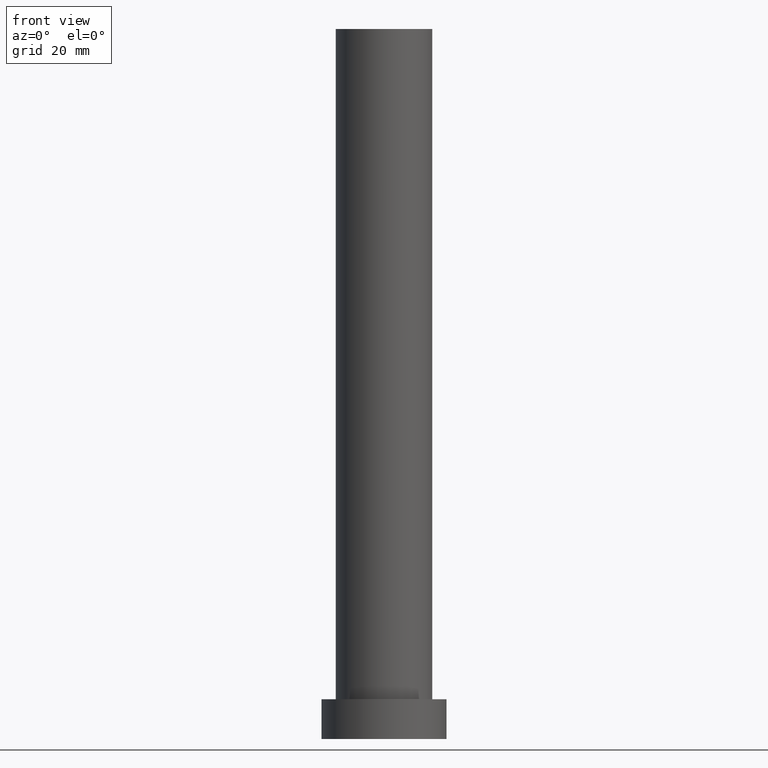
[diagram: clean part render]
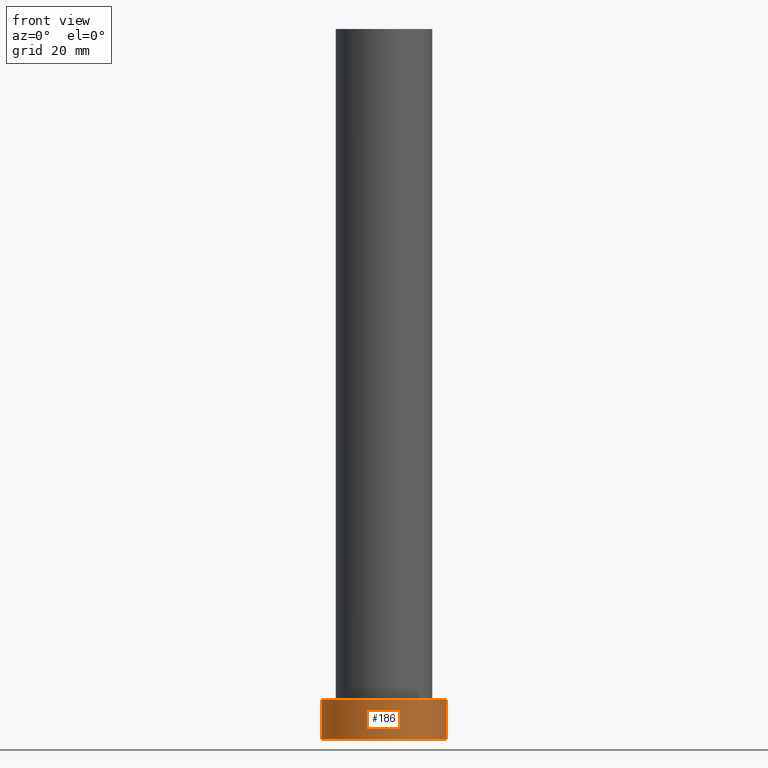
[diagram: same view with one face highlighted and labeled with its STEP entity id]
A machine part, front view. The second image highlights one B-rep face of the part: STEP entity #186.
In plain terms, the highlighted cylindrical surface (partial cylindrical patch) has radius 11 mm, axis along (-0, -0, -1).
Its self-contained STEP definition (entity closure, byte-faithful):
#6 = CARTESIAN_POINT ( 'NONE',  ( 11.00000000000000000, 1.347111479062088405E-15, 7.000000000000000000 ) ) ;
#7 = FACE_OUTER_BOUND ( 'NONE', #200, .T. ) ;
#8 = DIRECTION ( 'NONE',  ( 0.000000000000000000, 0.000000000000000000, 1.000000000000000000 ) ) ;
#12 = DIRECTION ( 'NONE',  ( -0.000000000000000000, -0.000000000000000000, -1.000000000000000000 ) ) ;
#15 = VECTOR ( 'NONE', #12, 1000.000000000000000 ) ;
#19 = ORIENTED_EDGE ( 'NONE', *, *, #166, .F. ) ;
#39 = LINE ( 'NONE', #243, #15 ) ;
#47 = CARTESIAN_POINT ( 'NONE',  ( 0.000000000000000000, 0.000000000000000000, 7.000000000000000000 ) ) ;
#64 = CARTESIAN_POINT ( 'NONE',  ( 11.00000000000000000, 1.347111479062088405E-15, 0.000000000000000000 ) ) ;
#70 = VERTEX_POINT ( 'NONE', #240 ) ;
#72 = ORIENTED_EDGE ( 'NONE', *, *, #83, .T. ) ;
#80 = VERTEX_POINT ( 'NONE', #253 ) ;
#83 = EDGE_CURVE ( 'NONE', #80, #196, #39, .T. ) ;
#87 = DIRECTION ( 'NONE',  ( -0.000000000000000000, -0.000000000000000000, -1.000000000000000000 ) ) ;
#98 = VECTOR ( 'NONE', #169, 1000.000000000000000 ) ;
#109 = CARTESIAN_POINT ( 'NONE',  ( 0.000000000000000000, 0.000000000000000000, 7.000000000000000000 ) ) ;
#116 = CIRCLE ( 'NONE', #246, 11.00000000000000000 ) ;
#122 = CARTESIAN_POINT ( 'NONE',  ( 0.000000000000000000, 0.000000000000000000, 0.000000000000000000 ) ) ;
#143 = AXIS2_PLACEMENT_3D ( 'NONE', #122, #163, #237 ) ;
#144 = EDGE_CURVE ( 'NONE', #196, #160, #245, .T. ) ;
#146 = LINE ( 'NONE', #6, #98 ) ;
#147 = AXIS2_PLACEMENT_3D ( 'NONE', #109, #87, #182 ) ;
#160 = VERTEX_POINT ( 'NONE', #64 ) ;
#163 = DIRECTION ( 'NONE',  ( 0.000000000000000000, 0.000000000000000000, 1.000000000000000000 ) ) ;
#164 = ORIENTED_EDGE ( 'NONE', *, *, #195, .F. ) ;
#166 = EDGE_CURVE ( 'NONE', #70, #160, #146, .T. ) ;
#169 = DIRECTION ( 'NONE',  ( -0.000000000000000000, -0.000000000000000000, -1.000000000000000000 ) ) ;
#182 = DIRECTION ( 'NONE',  ( -1.000000000000000000, 0.000000000000000000, 0.000000000000000000 ) ) ;
#186 = ADVANCED_FACE ( 'NONE', ( #7 ), #224, .T. ) ;
#193 = ORIENTED_EDGE ( 'NONE', *, *, #144, .T. ) ;
#195 = EDGE_CURVE ( 'NONE', #80, #70, #116, .T. ) ;
#196 = VERTEX_POINT ( 'NONE', #205 ) ;
#200 = EDGE_LOOP ( 'NONE', ( #19, #164, #72, #193 ) ) ;
#205 = CARTESIAN_POINT ( 'NONE',  ( -11.00000000000000000, 0.000000000000000000, 0.000000000000000000 ) ) ;
#224 = CYLINDRICAL_SURFACE ( 'NONE', #147, 11.00000000000000000 ) ;
#237 = DIRECTION ( 'NONE',  ( 1.000000000000000000, 0.000000000000000000, 0.000000000000000000 ) ) ;
#240 = CARTESIAN_POINT ( 'NONE',  ( 11.00000000000000000, 1.347111479062088405E-15, 7.000000000000000000 ) ) ;
#243 = CARTESIAN_POINT ( 'NONE',  ( -11.00000000000000000, 0.000000000000000000, 7.000000000000000000 ) ) ;
#245 = CIRCLE ( 'NONE', #143, 11.00000000000000000 ) ;
#246 = AXIS2_PLACEMENT_3D ( 'NONE', #47, #8, #249 ) ;
#249 = DIRECTION ( 'NONE',  ( 1.000000000000000000, 0.000000000000000000, 0.000000000000000000 ) ) ;
#253 = CARTESIAN_POINT ( 'NONE',  ( -11.00000000000000000, 0.000000000000000000, 7.000000000000000000 ) ) ;